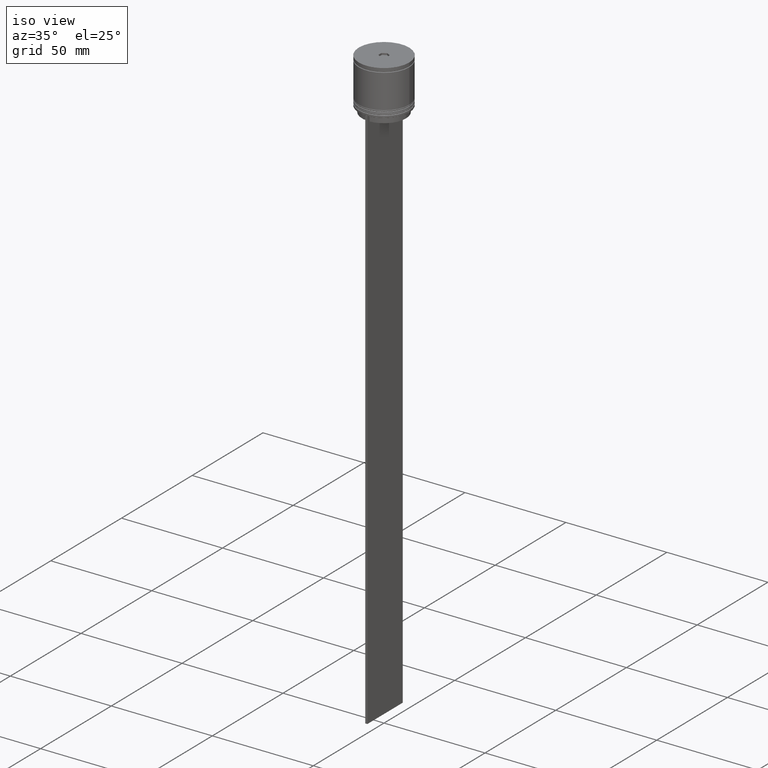
[diagram: clean part render]
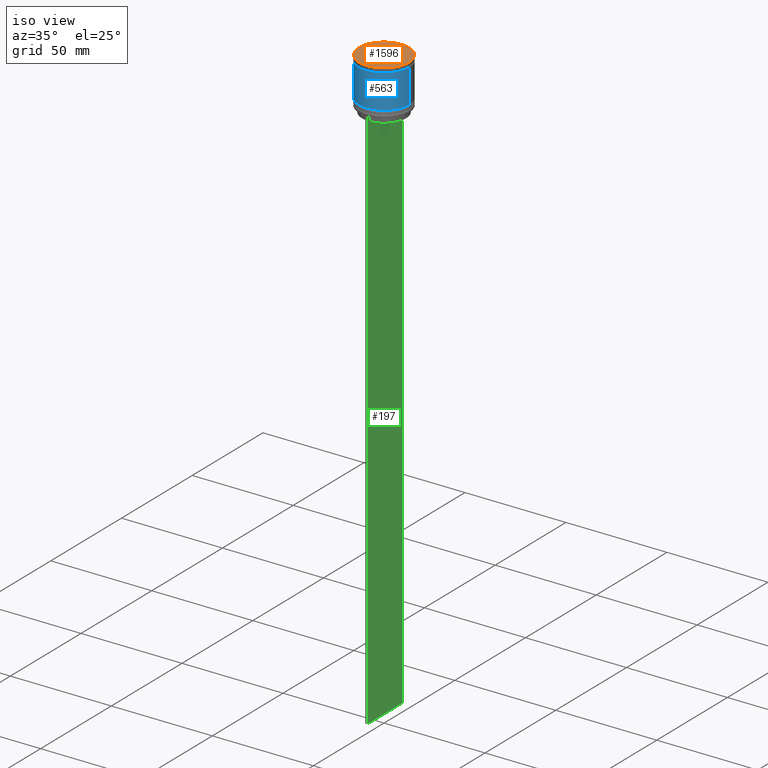
[diagram: same view with three faces highlighted in distinct colors, each labeled with its STEP entity id]
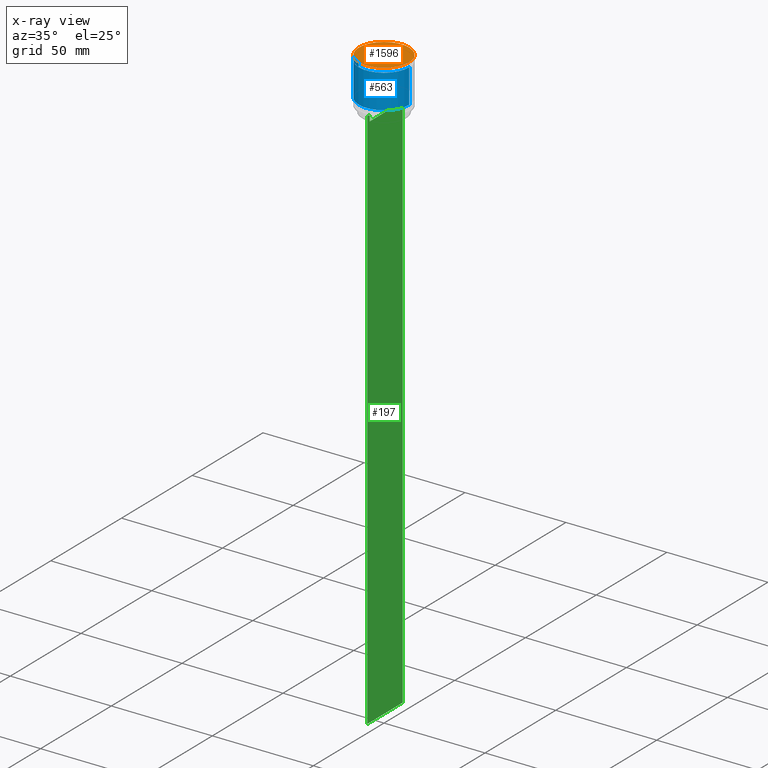
[diagram: x-ray of the same camera — body ghosted, the three highlighted faces saturated]
A machine part, iso view with three faces highlighted in distinct colors.
The next image is the same camera in x-ray (body ghosted, the three faces saturated) — at least one of them is partly hidden behind the body in this view.
Their STEP definitions:

[orange] entity #1596 — the highlighted planar face has unit normal (0, -0, 1).
#96 = ORIENTED_EDGE ( 'NONE', *, *, #805, .T. ) ;
#128 = ORIENTED_EDGE ( 'NONE', *, *, #424, .T. ) ;
#137 = AXIS2_PLACEMENT_3D ( 'NONE', #1410, #744, #2068 ) ;
#143 = VECTOR ( 'NONE', #1235, 1000.000000000000000 ) ;
#160 = EDGE_CURVE ( 'NONE', #1867, #1853, #1185, .T. ) ;
#169 = CIRCLE ( 'NONE', #137, 12.39999999999999858 ) ;
#238 = CARTESIAN_POINT ( 'NONE',  ( 2.099999999999976552, -1.212435565298200180, 0.000000000000000000 ) ) ;
#276 = VECTOR ( 'NONE', #933, 1000.000000000000000 ) ;
#289 = LINE ( 'NONE', #1719, #143 ) ;
#383 = EDGE_CURVE ( 'NONE', #926, #712, #1231, .T. ) ;
#388 = ORIENTED_EDGE ( 'NONE', *, *, #1229, .T. ) ;
#424 = EDGE_CURVE ( 'NONE', #1853, #1867, #169, .T. ) ;
#452 = DIRECTION ( 'NONE',  ( -0.8660254037844388186, 0.4999999999999997780, 0.000000000000000000 ) ) ;
#455 = CARTESIAN_POINT ( 'NONE',  ( -0.04999999999998829686, 2.396003617136925445, 0.000000000000000000 ) ) ;
#495 = CARTESIAN_POINT ( 'NONE',  ( -12.39999999999999858, 1.524685264938454448E-15, 0.000000000000000000 ) ) ;
#499 = EDGE_CURVE ( 'NONE', #1627, #1711, #1072, .T. ) ;
#559 = FACE_OUTER_BOUND ( 'NONE', #1265, .T. ) ;
#584 = CARTESIAN_POINT ( 'NONE',  ( -2.099999999999976552, 1.212435565298199958, 0.000000000000000000 ) ) ;
#616 = CARTESIAN_POINT ( 'NONE',  ( -2.049999999999987832, -1.241303078757675538, 0.000000000000000000 ) ) ;
#631 = FACE_BOUND ( 'NONE', #1894, .T. ) ;
#634 = DIRECTION ( 'NONE',  ( -0.8660254037844385966, -0.5000000000000002220, 0.000000000000000000 ) ) ;
#652 = CARTESIAN_POINT ( 'NONE',  ( 12.39999999999999858, 0.000000000000000000, 0.000000000000000000 ) ) ;
#712 = VERTEX_POINT ( 'NONE', #238 ) ;
#744 = DIRECTION ( 'NONE',  ( -0.000000000000000000, -0.000000000000000000, 1.000000000000000000 ) ) ;
#759 = ORIENTED_EDGE ( 'NONE', *, *, #160, .T. ) ;
#805 = EDGE_CURVE ( 'NONE', #1550, #2079, #939, .T. ) ;
#817 = CARTESIAN_POINT ( 'NONE',  ( 2.049999999999987832, 1.241303078757674649, 0.000000000000000000 ) ) ;
#888 = ORIENTED_EDGE ( 'NONE', *, *, #1388, .T. ) ;
#926 = VERTEX_POINT ( 'NONE', #2056 ) ;
#933 = DIRECTION ( 'NONE',  ( 0.000000000000000000, -1.000000000000000000, 0.000000000000000000 ) ) ;
#934 = PLANE ( 'NONE',  #1234 ) ;
#939 = LINE ( 'NONE', #616, #1050 ) ;
#975 = LINE ( 'NONE', #817, #1201 ) ;
#979 = CARTESIAN_POINT ( 'NONE',  ( 0.04999999999998844258, -2.396003617136926334, 0.000000000000000000 ) ) ;
#1050 = VECTOR ( 'NONE', #452, 1000.000000000000114 ) ;
#1072 = LINE ( 'NONE', #455, #1757 ) ;
#1185 = CIRCLE ( 'NONE', #1897, 12.39999999999999858 ) ;
#1201 = VECTOR ( 'NONE', #1463, 1000.000000000000000 ) ;
#1229 = EDGE_CURVE ( 'NONE', #2079, #1627, #289, .T. ) ;
#1231 = LINE ( 'NONE', #1888, #276 ) ;
#1234 = AXIS2_PLACEMENT_3D ( 'NONE', #1908, #2060, #1271 ) ;
#1235 = DIRECTION ( 'NONE',  ( 0.000000000000000000, 1.000000000000000000, 0.000000000000000000 ) ) ;
#1260 = ORIENTED_EDGE ( 'NONE', *, *, #383, .T. ) ;
#1262 = CARTESIAN_POINT ( 'NONE',  ( 1.843405708750384860E-16, 2.424871130596400359, 0.000000000000000000 ) ) ;
#1265 = EDGE_LOOP ( 'NONE', ( #128, #759 ) ) ;
#1271 = DIRECTION ( 'NONE',  ( 1.000000000000000000, 0.000000000000000000, 0.000000000000000000 ) ) ;
#1313 = DIRECTION ( 'NONE',  ( 1.000000000000000000, 0.000000000000000000, 0.000000000000000000 ) ) ;
#1388 = EDGE_CURVE ( 'NONE', #712, #1550, #1458, .T. ) ;
#1396 = CARTESIAN_POINT ( 'NONE',  ( -2.099999999999976552, -1.212435565298201068, 0.000000000000000000 ) ) ;
#1410 = CARTESIAN_POINT ( 'NONE',  ( 0.000000000000000000, 0.000000000000000000, 0.000000000000000000 ) ) ;
#1458 = LINE ( 'NONE', #979, #1798 ) ;
#1463 = DIRECTION ( 'NONE',  ( 0.8660254037844387076, -0.4999999999999998890, 0.000000000000000000 ) ) ;
#1550 = VERTEX_POINT ( 'NONE', #1839 ) ;
#1596 = ADVANCED_FACE ( 'NONE', ( #559, #631 ), #934, .T. ) ;
#1601 = ORIENTED_EDGE ( 'NONE', *, *, #499, .T. ) ;
#1627 = VERTEX_POINT ( 'NONE', #584 ) ;
#1711 = VERTEX_POINT ( 'NONE', #1262 ) ;
#1714 = ORIENTED_EDGE ( 'NONE', *, *, #1787, .T. ) ;
#1719 = CARTESIAN_POINT ( 'NONE',  ( -2.099999999999976552, 1.154700538379251018, 0.000000000000000000 ) ) ;
#1740 = DIRECTION ( 'NONE',  ( 0.8660254037844387076, 0.4999999999999998890, 0.000000000000000000 ) ) ;
#1757 = VECTOR ( 'NONE', #1740, 1000.000000000000000 ) ;
#1787 = EDGE_CURVE ( 'NONE', #1711, #926, #975, .T. ) ;
#1798 = VECTOR ( 'NONE', #634, 999.9999999999998863 ) ;
#1839 = CARTESIAN_POINT ( 'NONE',  ( 4.094594143581926364E-16, -2.424871130596400803, 0.000000000000000000 ) ) ;
#1853 = VERTEX_POINT ( 'NONE', #652 ) ;
#1867 = VERTEX_POINT ( 'NONE', #495 ) ;
#1888 = CARTESIAN_POINT ( 'NONE',  ( 2.099999999999976552, -1.154700538379251684, 0.000000000000000000 ) ) ;
#1894 = EDGE_LOOP ( 'NONE', ( #888, #96, #388, #1601, #1714, #1260 ) ) ;
#1897 = AXIS2_PLACEMENT_3D ( 'NONE', #1958, #2083, #1313 ) ;
#1908 = CARTESIAN_POINT ( 'NONE',  ( 0.000000000000000000, 0.000000000000000000, 0.000000000000000000 ) ) ;
#1958 = CARTESIAN_POINT ( 'NONE',  ( 0.000000000000000000, 0.000000000000000000, 0.000000000000000000 ) ) ;
#2056 = CARTESIAN_POINT ( 'NONE',  ( 2.099999999999976552, 1.212435565298200180, 0.000000000000000000 ) ) ;
#2060 = DIRECTION ( 'NONE',  ( 0.000000000000000000, -0.000000000000000000, 1.000000000000000000 ) ) ;
#2068 = DIRECTION ( 'NONE',  ( 1.000000000000000000, 0.000000000000000000, 0.000000000000000000 ) ) ;
#2079 = VERTEX_POINT ( 'NONE', #1396 ) ;
#2083 = DIRECTION ( 'NONE',  ( -0.000000000000000000, -0.000000000000000000, 1.000000000000000000 ) ) ;

[blue] entity #563 — the highlighted cylindrical surface (edge-blend (fillet) strip) has radius 12.5 mm, axis along (-0, -0, 1).
#11 = CARTESIAN_POINT ( 'NONE',  ( -12.49999999999999645, 1.530808498934191324E-15, -2.199999999999994404 ) ) ;
#20 = CIRCLE ( 'NONE', #1335, 12.50000000000000178 ) ;
#38 = ORIENTED_EDGE ( 'NONE', *, *, #1103, .F. ) ;
#44 = CARTESIAN_POINT ( 'NONE',  ( -12.50000000000000355, 1.530808498934191916E-15, -19.00000000000000000 ) ) ;
#76 = VERTEX_POINT ( 'NONE', #1402 ) ;
#159 = DIRECTION ( 'NONE',  ( 1.000000000000000000, 0.000000000000000000, 0.000000000000000000 ) ) ;
#165 = CYLINDRICAL_SURFACE ( 'NONE', #1484, 12.50000000000000000 ) ;
#183 = LINE ( 'NONE', #473, #774 ) ;
#314 = ORIENTED_EDGE ( 'NONE', *, *, #341, .F. ) ;
#341 = EDGE_CURVE ( 'NONE', #973, #76, #1665, .T. ) ;
#392 = DIRECTION ( 'NONE',  ( -0.000000000000000000, -0.000000000000000000, 1.000000000000000000 ) ) ;
#473 = CARTESIAN_POINT ( 'NONE',  ( 12.50000000000000000, 0.000000000000000000, 0.000000000000000000 ) ) ;
#560 = EDGE_CURVE ( 'NONE', #1686, #76, #183, .T. ) ;
#563 = ADVANCED_FACE ( 'NONE', ( #1936 ), #165, .T. ) ;
#655 = DIRECTION ( 'NONE',  ( -0.000000000000000000, -0.000000000000000000, 1.000000000000000000 ) ) ;
#716 = CARTESIAN_POINT ( 'NONE',  ( 12.50000000000000178, 0.000000000000000000, -19.00000000000000000 ) ) ;
#722 = CARTESIAN_POINT ( 'NONE',  ( 0.000000000000000000, 0.000000000000000000, -2.199999999999994404 ) ) ;
#730 = ORIENTED_EDGE ( 'NONE', *, *, #1397, .T. ) ;
#774 = VECTOR ( 'NONE', #1947, 1000.000000000000000 ) ;
#851 = CARTESIAN_POINT ( 'NONE',  ( -12.50000000000000000, 1.530808498934191521E-15, 0.000000000000000000 ) ) ;
#973 = VERTEX_POINT ( 'NONE', #11 ) ;
#1071 = VERTEX_POINT ( 'NONE', #44 ) ;
#1103 = EDGE_CURVE ( 'NONE', #1071, #973, #1330, .T. ) ;
#1198 = DIRECTION ( 'NONE',  ( 1.000000000000000000, 0.000000000000000000, 0.000000000000000000 ) ) ;
#1206 = EDGE_LOOP ( 'NONE', ( #38, #730, #1510, #314 ) ) ;
#1330 = LINE ( 'NONE', #851, #1420 ) ;
#1335 = AXIS2_PLACEMENT_3D ( 'NONE', #1744, #655, #159 ) ;
#1378 = DIRECTION ( 'NONE',  ( -0.000000000000000000, -0.000000000000000000, 1.000000000000000000 ) ) ;
#1397 = EDGE_CURVE ( 'NONE', #1071, #1686, #20, .T. ) ;
#1402 = CARTESIAN_POINT ( 'NONE',  ( 12.49999999999999645, 0.000000000000000000, -2.199999999999994404 ) ) ;
#1420 = VECTOR ( 'NONE', #392, 1000.000000000000000 ) ;
#1484 = AXIS2_PLACEMENT_3D ( 'NONE', #2080, #1645, #1916 ) ;
#1510 = ORIENTED_EDGE ( 'NONE', *, *, #560, .T. ) ;
#1645 = DIRECTION ( 'NONE',  ( -0.000000000000000000, -0.000000000000000000, 1.000000000000000000 ) ) ;
#1665 = CIRCLE ( 'NONE', #1960, 12.49999999999999645 ) ;
#1686 = VERTEX_POINT ( 'NONE', #716 ) ;
#1744 = CARTESIAN_POINT ( 'NONE',  ( 0.000000000000000000, 0.000000000000000000, -19.00000000000000000 ) ) ;
#1916 = DIRECTION ( 'NONE',  ( 1.000000000000000000, 0.000000000000000000, 0.000000000000000000 ) ) ;
#1936 = FACE_OUTER_BOUND ( 'NONE', #1206, .T. ) ;
#1947 = DIRECTION ( 'NONE',  ( -0.000000000000000000, -0.000000000000000000, 1.000000000000000000 ) ) ;
#1960 = AXIS2_PLACEMENT_3D ( 'NONE', #722, #1378, #1198 ) ;
#2080 = CARTESIAN_POINT ( 'NONE',  ( 0.000000000000000000, 0.000000000000000000, 0.000000000000000000 ) ) ;

[green] entity #197 — the highlighted planar face has unit normal (-1, 0, 0).
#3 = EDGE_LOOP ( 'NONE', ( #574, #647, #256, #1345, #753, #343, #1799, #1822, #164, #1667, #451, #1390 ) ) ;
#27 = DIRECTION ( 'NONE',  ( 0.000000000000000000, 1.000000000000000000, 0.000000000000000000 ) ) ;
#59 = VERTEX_POINT ( 'NONE', #114 ) ;
#70 = CARTESIAN_POINT ( 'NONE',  ( 0.5000000000000000000, 12.38991525394746596, -22.50000000000000000 ) ) ;
#82 = CARTESIAN_POINT ( 'NONE',  ( 0.5000000000000000000, -12.49999999999999289, 2.519992006393609874 ) ) ;
#93 = CARTESIAN_POINT ( 'NONE',  ( 0.5000000000000000000, 12.50000000000000711, -294.5000000000000568 ) ) ;
#111 = EDGE_CURVE ( 'NONE', #59, #990, #669, .T. ) ;
#114 = CARTESIAN_POINT ( 'NONE',  ( 0.5000000000000000000, 10.88852607105296855, -25.50000000000000000 ) ) ;
#134 = EDGE_CURVE ( 'NONE', #1342, #1720, #1305, .T. ) ;
#153 = VERTEX_POINT ( 'NONE', #681 ) ;
#164 = ORIENTED_EDGE ( 'NONE', *, *, #1634, .T. ) ;
#167 = PLANE ( 'NONE',  #1929 ) ;
#196 = CARTESIAN_POINT ( 'NONE',  ( 0.5000000000000000000, -12.49999999999999289, 2.519992006393609874 ) ) ;
#197 = ADVANCED_FACE ( 'NONE', ( #1639 ), #167, .F. ) ;
#198 = VERTEX_POINT ( 'NONE', #1938 ) ;
#214 = CARTESIAN_POINT ( 'NONE',  ( 0.5000000000000000000, 10.88852607105297032, 0.000000000000000000 ) ) ;
#228 = DIRECTION ( 'NONE',  ( 0.000000000000000000, -1.000000000000000000, 0.000000000000000000 ) ) ;
#256 = ORIENTED_EDGE ( 'NONE', *, *, #1151, .T. ) ;
#275 = CARTESIAN_POINT ( 'NONE',  ( 0.5000000000000000000, -11.38902980942626897, -22.50000000000000000 ) ) ;
#302 = VERTEX_POINT ( 'NONE', #70 ) ;
#303 = DIRECTION ( 'NONE',  ( -0.000000000000000000, -0.000000000000000000, 1.000000000000000000 ) ) ;
#343 = ORIENTED_EDGE ( 'NONE', *, *, #1567, .T. ) ;
#402 = VERTEX_POINT ( 'NONE', #275 ) ;
#417 = DIRECTION ( 'NONE',  ( 0.000000000000000000, -1.000000000000000000, 0.000000000000000000 ) ) ;
#423 = CARTESIAN_POINT ( 'NONE',  ( 0.5000000000000000000, -10.88852607105297032, 0.000000000000000000 ) ) ;
#446 = EDGE_CURVE ( 'NONE', #990, #198, #772, .T. ) ;
#451 = ORIENTED_EDGE ( 'NONE', *, *, #661, .F. ) ;
#456 = DIRECTION ( 'NONE',  ( 0.000000000000000000, 0.000000000000000000, -1.000000000000000000 ) ) ;
#474 = DIRECTION ( 'NONE',  ( 0.000000000000000000, -1.000000000000000000, 0.000000000000000000 ) ) ;
#530 = CARTESIAN_POINT ( 'NONE',  ( 0.5000000000000000000, -12.49999999999999289, -22.50000000000000000 ) ) ;
#574 = ORIENTED_EDGE ( 'NONE', *, *, #1192, .T. ) ;
#588 = CARTESIAN_POINT ( 'NONE',  ( 0.5000000000000000000, -12.38991525394746596, -22.50000000000000000 ) ) ;
#627 = EDGE_CURVE ( 'NONE', #1394, #1037, #1400, .T. ) ;
#639 = CARTESIAN_POINT ( 'NONE',  ( 0.5000000000000000000, 11.38902980942626897, -22.50000000000000000 ) ) ;
#647 = ORIENTED_EDGE ( 'NONE', *, *, #627, .T. ) ;
#661 = EDGE_CURVE ( 'NONE', #153, #1720, #1207, .T. ) ;
#669 = LINE ( 'NONE', #1144, #2028 ) ;
#681 = CARTESIAN_POINT ( 'NONE',  ( 0.5000000000000000000, 12.50000000000000711, -22.50000000000000000 ) ) ;
#685 = EDGE_CURVE ( 'NONE', #402, #856, #1355, .T. ) ;
#725 = LINE ( 'NONE', #1200, #1066 ) ;
#745 = VECTOR ( 'NONE', #1710, 1000.000000000000000 ) ;
#753 = ORIENTED_EDGE ( 'NONE', *, *, #446, .T. ) ;
#772 = LINE ( 'NONE', #423, #2022 ) ;
#809 = DIRECTION ( 'NONE',  ( 0.000000000000000000, 0.000000000000000000, 1.000000000000000000 ) ) ;
#828 = CARTESIAN_POINT ( 'NONE',  ( 0.5000000000000000000, -10.88852607105297032, -22.99999999999999645 ) ) ;
#844 = VECTOR ( 'NONE', #27, 1000.000000000000000 ) ;
#856 = VERTEX_POINT ( 'NONE', #588 ) ;
#990 = VERTEX_POINT ( 'NONE', #1275 ) ;
#1037 = VERTEX_POINT ( 'NONE', #1944 ) ;
#1066 = VECTOR ( 'NONE', #474, 1000.000000000000000 ) ;
#1120 = VERTEX_POINT ( 'NONE', #530 ) ;
#1137 = CARTESIAN_POINT ( 'NONE',  ( 0.5000000000000000000, -12.49999999999999289, -294.5000000000000568 ) ) ;
#1144 = CARTESIAN_POINT ( 'NONE',  ( 0.5000000000000000000, 10.90000000000000924, -25.50000000000000000 ) ) ;
#1145 = VECTOR ( 'NONE', #228, 1000.000000000000000 ) ;
#1151 = EDGE_CURVE ( 'NONE', #1037, #59, #2006, .T. ) ;
#1179 = VECTOR ( 'NONE', #1966, 1000.000000000000000 ) ;
#1181 = DIRECTION ( 'NONE',  ( 0.000000000000000000, 0.000000000000000000, -1.000000000000000000 ) ) ;
#1184 = CARTESIAN_POINT ( 'NONE',  ( 0.5000000000000000000, -12.49999999999999289, -22.50000000000000000 ) ) ;
#1192 = EDGE_CURVE ( 'NONE', #302, #1394, #1243, .T. ) ;
#1200 = CARTESIAN_POINT ( 'NONE',  ( 0.5000000000000000000, -12.49999999999999289, -22.50000000000000000 ) ) ;
#1207 = LINE ( 'NONE', #1680, #1179 ) ;
#1213 = CARTESIAN_POINT ( 'NONE',  ( 0.5000000000000000000, -12.49999999999999289, -22.50000000000000000 ) ) ;
#1232 = EDGE_CURVE ( 'NONE', #856, #1120, #1393, .T. ) ;
#1243 = LINE ( 'NONE', #1545, #1663 ) ;
#1275 = CARTESIAN_POINT ( 'NONE',  ( 0.5000000000000000000, -10.88852607105296855, -25.50000000000000000 ) ) ;
#1279 = CARTESIAN_POINT ( 'NONE',  ( 0.5000000000000000000, 11.22219891375843126, -22.66667035472756808 ) ) ;
#1294 = DIRECTION ( 'NONE',  ( -1.000000000000000000, 0.000000000000000000, 0.000000000000000000 ) ) ;
#1305 = LINE ( 'NONE', #1483, #844 ) ;
#1329 = CARTESIAN_POINT ( 'NONE',  ( 0.5000000000000000000, -11.22219891450653151, -22.66667035398018726 ) ) ;
#1342 = VERTEX_POINT ( 'NONE', #1137 ) ;
#1345 = ORIENTED_EDGE ( 'NONE', *, *, #111, .T. ) ;
#1355 = LINE ( 'NONE', #1184, #1145 ) ;
#1360 = LINE ( 'NONE', #82, #1609 ) ;
#1390 = ORIENTED_EDGE ( 'NONE', *, *, #1691, .T. ) ;
#1393 = LINE ( 'NONE', #1213, #745 ) ;
#1394 = VERTEX_POINT ( 'NONE', #1901 ) ;
#1400 = B_SPLINE_CURVE_WITH_KNOTS ( 'NONE', 3,
 ( #639, #1279, #1613, #1450 ),
 .UNSPECIFIED., .F., .F.,
 ( 4, 4 ),
 ( 0.01935560801904635808, 0.02006307108468587813 ),
 .UNSPECIFIED. ) ;
#1450 = CARTESIAN_POINT ( 'NONE',  ( 0.5000000000000000000, 10.88852607105297032, -22.99999999999999645 ) ) ;
#1475 = CARTESIAN_POINT ( 'NONE',  ( 0.5000000000000000000, -11.05536450423839412, -22.83333718996392747 ) ) ;
#1483 = CARTESIAN_POINT ( 'NONE',  ( 0.5000000000000000000, -12.49999999999999289, -294.5000000000000568 ) ) ;
#1545 = CARTESIAN_POINT ( 'NONE',  ( 0.5000000000000000000, -12.49999999999999289, -22.50000000000000000 ) ) ;
#1567 = EDGE_CURVE ( 'NONE', #198, #402, #1650, .T. ) ;
#1609 = VECTOR ( 'NONE', #456, 1000.000000000000000 ) ;
#1613 = CARTESIAN_POINT ( 'NONE',  ( 0.5000000000000000000, 11.05536450345590715, -22.83333719074559554 ) ) ;
#1634 = EDGE_CURVE ( 'NONE', #1120, #1342, #1360, .T. ) ;
#1639 = FACE_OUTER_BOUND ( 'NONE', #3, .T. ) ;
#1650 = B_SPLINE_CURVE_WITH_KNOTS ( 'NONE', 3,
 ( #828, #1475, #1329, #1972 ),
 .UNSPECIFIED., .F., .F.,
 ( 4, 4 ),
 ( 0.05041323384703231408, 0.05112713601261610619 ),
 .UNSPECIFIED. ) ;
#1663 = VECTOR ( 'NONE', #417, 1000.000000000000000 ) ;
#1667 = ORIENTED_EDGE ( 'NONE', *, *, #134, .T. ) ;
#1680 = CARTESIAN_POINT ( 'NONE',  ( 0.5000000000000000000, 12.50000000000000711, 2.519992006393609874 ) ) ;
#1691 = EDGE_CURVE ( 'NONE', #153, #302, #725, .T. ) ;
#1710 = DIRECTION ( 'NONE',  ( 0.000000000000000000, -1.000000000000000000, 0.000000000000000000 ) ) ;
#1720 = VERTEX_POINT ( 'NONE', #93 ) ;
#1731 = VECTOR ( 'NONE', #1181, 1000.000000000000000 ) ;
#1799 = ORIENTED_EDGE ( 'NONE', *, *, #685, .T. ) ;
#1814 = DIRECTION ( 'NONE',  ( 0.000000000000000000, -1.000000000000000000, 0.000000000000000000 ) ) ;
#1822 = ORIENTED_EDGE ( 'NONE', *, *, #1232, .T. ) ;
#1901 = CARTESIAN_POINT ( 'NONE',  ( 0.5000000000000000000, 11.38902980942626897, -22.50000000000000000 ) ) ;
#1929 = AXIS2_PLACEMENT_3D ( 'NONE', #196, #1294, #809 ) ;
#1938 = CARTESIAN_POINT ( 'NONE',  ( 0.5000000000000000000, -10.88852607105297032, -22.99999999999999645 ) ) ;
#1944 = CARTESIAN_POINT ( 'NONE',  ( 0.5000000000000000000, 10.88852607105297032, -22.99999999999999645 ) ) ;
#1966 = DIRECTION ( 'NONE',  ( 0.000000000000000000, 0.000000000000000000, -1.000000000000000000 ) ) ;
#1972 = CARTESIAN_POINT ( 'NONE',  ( 0.5000000000000000000, -11.38902980942626897, -22.50000000000000000 ) ) ;
#2006 = LINE ( 'NONE', #214, #1731 ) ;
#2022 = VECTOR ( 'NONE', #303, 1000.000000000000000 ) ;
#2028 = VECTOR ( 'NONE', #1814, 1000.000000000000000 ) ;